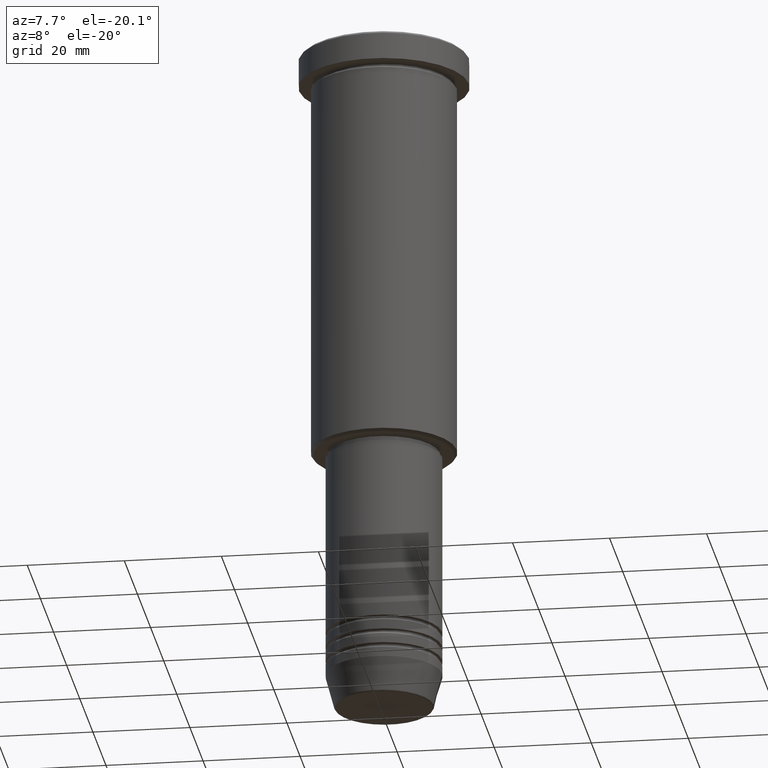
[diagram: clean part render]
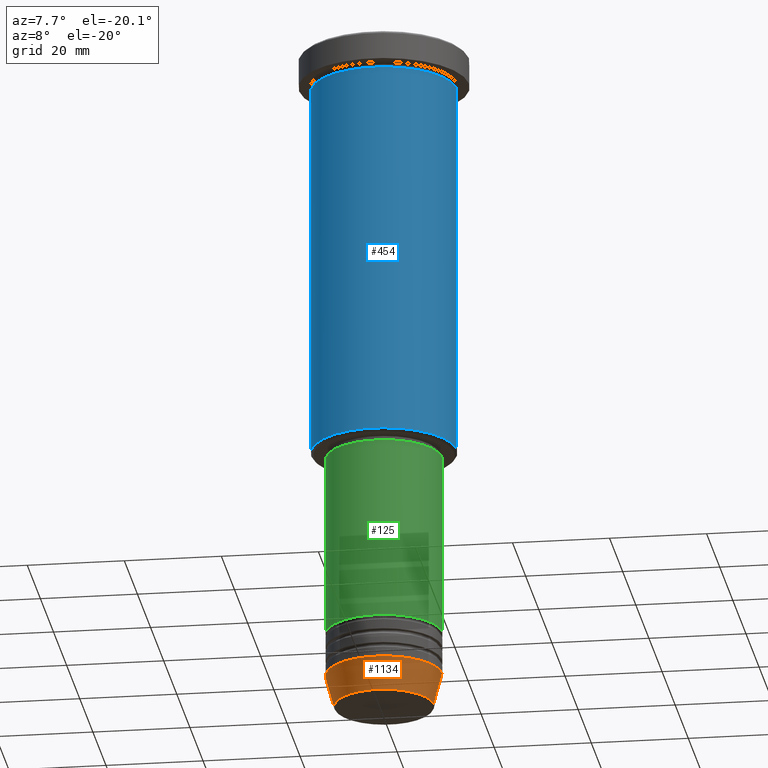
[diagram: same view with three faces highlighted in distinct colors, each labeled with its STEP entity id]
A machine part, auxiliary view with three faces highlighted in distinct colors.
Their STEP definitions:

[orange] entity #1134 — the highlighted conical surface has half-angle 15 deg.
#48 = CARTESIAN_POINT ( 'NONE',  ( 0.000000000000000000, 0.000000000000000000, -140.6294095225512706 ) ) ;
#65 = CARTESIAN_POINT ( 'NONE',  ( 0.000000000000000000, 0.000000000000000000, -134.0000000000000000 ) ) ;
#121 = CARTESIAN_POINT ( 'NONE',  ( 12.00000000000000000, 0.000000000000000000, -134.0000000000000000 ) ) ;
#204 = VECTOR ( 'NONE', #697, 1000.000000000000000 ) ;
#217 = ORIENTED_EDGE ( 'NONE', *, *, #599, .F. ) ;
#254 = EDGE_LOOP ( 'NONE', ( #533, #869, #663, #217 ) ) ;
#291 = CARTESIAN_POINT ( 'NONE',  ( 10.22365507213719127, 0.000000000000000000, -140.6294095225512706 ) ) ;
#330 = CARTESIAN_POINT ( 'NONE',  ( -12.00000000000000000, 1.469576158976823947E-15, -134.0000000000000000 ) ) ;
#408 = DIRECTION ( 'NONE',  ( 1.000000000000000000, 0.000000000000000000, 0.000000000000000000 ) ) ;
#432 = CIRCLE ( 'NONE', #893, 10.22365507213719127 ) ;
#456 = CARTESIAN_POINT ( 'NONE',  ( -10.22365507213719127, 1.360806402472382744E-15, -140.6294095225512706 ) ) ;
#463 = VECTOR ( 'NONE', #496, 1000.000000000000000 ) ;
#478 = VERTEX_POINT ( 'NONE', #456 ) ;
#496 = DIRECTION ( 'NONE',  ( -0.2588190451025213501, 3.169619151431772337E-17, 0.9659258262890680902 ) ) ;
#523 = VERTEX_POINT ( 'NONE', #291 ) ;
#533 = ORIENTED_EDGE ( 'NONE', *, *, #784, .F. ) ;
#534 = FACE_OUTER_BOUND ( 'NONE', #254, .T. ) ;
#581 = LINE ( 'NONE', #960, #204 ) ;
#599 = EDGE_CURVE ( 'NONE', #736, #902, #1180, .T. ) ;
#608 = AXIS2_PLACEMENT_3D ( 'NONE', #65, #1176, #1087 ) ;
#663 = ORIENTED_EDGE ( 'NONE', *, *, #800, .T. ) ;
#684 = CARTESIAN_POINT ( 'NONE',  ( 0.000000000000000000, 0.000000000000000000, -134.0000000000000000 ) ) ;
#697 = DIRECTION ( 'NONE',  ( 0.2588190451025213501, 0.000000000000000000, 0.9659258262890680902 ) ) ;
#736 = VERTEX_POINT ( 'NONE', #330 ) ;
#749 = DIRECTION ( 'NONE',  ( -0.000000000000000000, -0.000000000000000000, 1.000000000000000000 ) ) ;
#784 = EDGE_CURVE ( 'NONE', #478, #736, #881, .T. ) ;
#800 = EDGE_CURVE ( 'NONE', #523, #902, #581, .T. ) ;
#809 = EDGE_CURVE ( 'NONE', #478, #523, #432, .T. ) ;
#862 = DIRECTION ( 'NONE',  ( -0.000000000000000000, -0.000000000000000000, 1.000000000000000000 ) ) ;
#869 = ORIENTED_EDGE ( 'NONE', *, *, #809, .T. ) ;
#877 = CONICAL_SURFACE ( 'NONE', #608, 12.00000000000000000, 0.2617993877991500740 ) ;
#881 = LINE ( 'NONE', #1038, #463 ) ;
#893 = AXIS2_PLACEMENT_3D ( 'NONE', #48, #862, #408 ) ;
#902 = VERTEX_POINT ( 'NONE', #121 ) ;
#960 = CARTESIAN_POINT ( 'NONE',  ( 12.00000000000000000, 0.000000000000000000, -134.0000000000000000 ) ) ;
#966 = AXIS2_PLACEMENT_3D ( 'NONE', #684, #749, #1052 ) ;
#1038 = CARTESIAN_POINT ( 'NONE',  ( -12.00000000000000000, 1.469576158976823947E-15, -134.0000000000000000 ) ) ;
#1052 = DIRECTION ( 'NONE',  ( 1.000000000000000000, 0.000000000000000000, 0.000000000000000000 ) ) ;
#1087 = DIRECTION ( 'NONE',  ( 1.000000000000000000, 0.000000000000000000, 0.000000000000000000 ) ) ;
#1134 = ADVANCED_FACE ( 'NONE', ( #534 ), #877, .T. ) ;
#1176 = DIRECTION ( 'NONE',  ( -0.000000000000000000, -0.000000000000000000, 1.000000000000000000 ) ) ;
#1180 = CIRCLE ( 'NONE', #966, 12.00000000000000000 ) ;

[blue] entity #454 — the highlighted cylindrical surface (partial cylindrical patch) has radius 15 mm, axis along (-0, -0, 1).
#4 = EDGE_LOOP ( 'NONE', ( #747, #151, #689, #631 ) ) ;
#14 = VECTOR ( 'NONE', #393, 1000.000000000000000 ) ;
#51 = AXIS2_PLACEMENT_3D ( 'NONE', #708, #262, #253 ) ;
#93 = CARTESIAN_POINT ( 'NONE',  ( 0.000000000000000000, 0.000000000000000000, 0.000000000000000000 ) ) ;
#143 = CARTESIAN_POINT ( 'NONE',  ( -15.00000000000000000, 1.836970198721029589E-15, 0.000000000000000000 ) ) ;
#145 = CIRCLE ( 'NONE', #644, 15.00000000000000000 ) ;
#149 = DIRECTION ( 'NONE',  ( -1.000000000000000000, 0.000000000000000000, 0.000000000000000000 ) ) ;
#151 = ORIENTED_EDGE ( 'NONE', *, *, #1007, .T. ) ;
#186 = CYLINDRICAL_SURFACE ( 'NONE', #1161, 15.00000000000000000 ) ;
#253 = DIRECTION ( 'NONE',  ( 1.000000000000000000, 0.000000000000000000, 0.000000000000000000 ) ) ;
#262 = DIRECTION ( 'NONE',  ( -0.000000000000000000, -0.000000000000000000, 1.000000000000000000 ) ) ;
#375 = EDGE_CURVE ( 'NONE', #633, #539, #835, .T. ) ;
#380 = DIRECTION ( 'NONE',  ( -0.000000000000000000, -0.000000000000000000, 1.000000000000000000 ) ) ;
#392 = VECTOR ( 'NONE', #585, 1000.000000000000000 ) ;
#393 = DIRECTION ( 'NONE',  ( -0.000000000000000000, -0.000000000000000000, 1.000000000000000000 ) ) ;
#454 = ADVANCED_FACE ( 'NONE', ( #884 ), #186, .T. ) ;
#458 = VERTEX_POINT ( 'NONE', #724 ) ;
#461 = DIRECTION ( 'NONE',  ( 1.000000000000000000, 0.000000000000000000, 0.000000000000000000 ) ) ;
#473 = CARTESIAN_POINT ( 'NONE',  ( 15.00000000000000000, 0.000000000000000000, -6.999999999999995559 ) ) ;
#539 = VERTEX_POINT ( 'NONE', #473 ) ;
#585 = DIRECTION ( 'NONE',  ( -0.000000000000000000, -0.000000000000000000, 1.000000000000000000 ) ) ;
#620 = VERTEX_POINT ( 'NONE', #939 ) ;
#631 = ORIENTED_EDGE ( 'NONE', *, *, #375, .F. ) ;
#633 = VERTEX_POINT ( 'NONE', #1058 ) ;
#637 = EDGE_CURVE ( 'NONE', #458, #539, #782, .T. ) ;
#644 = AXIS2_PLACEMENT_3D ( 'NONE', #771, #1063, #149 ) ;
#651 = EDGE_CURVE ( 'NONE', #620, #633, #690, .T. ) ;
#689 = ORIENTED_EDGE ( 'NONE', *, *, #637, .T. ) ;
#690 = LINE ( 'NONE', #143, #392 ) ;
#708 = CARTESIAN_POINT ( 'NONE',  ( 0.000000000000000000, 0.000000000000000000, -6.999999999999995559 ) ) ;
#724 = CARTESIAN_POINT ( 'NONE',  ( 15.00000000000000000, 0.000000000000000000, -85.50000000000004263 ) ) ;
#747 = ORIENTED_EDGE ( 'NONE', *, *, #651, .F. ) ;
#771 = CARTESIAN_POINT ( 'NONE',  ( 0.000000000000000000, 0.000000000000000000, -85.50000000000004263 ) ) ;
#782 = LINE ( 'NONE', #962, #14 ) ;
#835 = CIRCLE ( 'NONE', #51, 15.00000000000000000 ) ;
#884 = FACE_OUTER_BOUND ( 'NONE', #4, .T. ) ;
#939 = CARTESIAN_POINT ( 'NONE',  ( -15.00000000000000000, 1.836970198721029589E-15, -85.50000000000004263 ) ) ;
#962 = CARTESIAN_POINT ( 'NONE',  ( 15.00000000000000000, 0.000000000000000000, 0.000000000000000000 ) ) ;
#1007 = EDGE_CURVE ( 'NONE', #620, #458, #145, .T. ) ;
#1058 = CARTESIAN_POINT ( 'NONE',  ( -15.00000000000000000, 1.836970198721029589E-15, -6.999999999999995559 ) ) ;
#1063 = DIRECTION ( 'NONE',  ( -0.000000000000000000, -0.000000000000000000, 1.000000000000000000 ) ) ;
#1161 = AXIS2_PLACEMENT_3D ( 'NONE', #93, #380, #461 ) ;

[green] entity #125 — the highlighted cylindrical surface (partial cylindrical patch) has radius 12 mm, axis along (-0, -0, 1).
#34 = EDGE_CURVE ( 'NONE', #532, #766, #482, .T. ) ;
#66 = AXIS2_PLACEMENT_3D ( 'NONE', #499, #947, #790 ) ;
#69 = VECTOR ( 'NONE', #1105, 1000.000000000000000 ) ;
#113 = ORIENTED_EDGE ( 'NONE', *, *, #34, .T. ) ;
#125 = ADVANCED_FACE ( 'NONE', ( #1132 ), #331, .T. ) ;
#268 = VERTEX_POINT ( 'NONE', #964 ) ;
#273 = CARTESIAN_POINT ( 'NONE',  ( -12.00000000000000000, 1.469576158976823947E-15, 0.000000000000000000 ) ) ;
#322 = DIRECTION ( 'NONE',  ( 1.000000000000000000, 0.000000000000000000, 0.000000000000000000 ) ) ;
#331 = CYLINDRICAL_SURFACE ( 'NONE', #66, 12.00000000000000000 ) ;
#370 = DIRECTION ( 'NONE',  ( -0.000000000000000000, -0.000000000000000000, 1.000000000000000000 ) ) ;
#390 = AXIS2_PLACEMENT_3D ( 'NONE', #551, #741, #648 ) ;
#397 = CARTESIAN_POINT ( 'NONE',  ( 12.00000000000000000, 0.000000000000000000, -124.9999999999999716 ) ) ;
#482 = CIRCLE ( 'NONE', #390, 12.00000000000000000 ) ;
#499 = CARTESIAN_POINT ( 'NONE',  ( 0.000000000000000000, 0.000000000000000000, 0.000000000000000000 ) ) ;
#505 = VECTOR ( 'NONE', #370, 1000.000000000000000 ) ;
#532 = VERTEX_POINT ( 'NONE', #650 ) ;
#535 = EDGE_CURVE ( 'NONE', #532, #268, #557, .T. ) ;
#551 = CARTESIAN_POINT ( 'NONE',  ( 0.000000000000000000, 0.000000000000000000, -124.9999999999999716 ) ) ;
#553 = EDGE_CURVE ( 'NONE', #766, #588, #734, .T. ) ;
#557 = LINE ( 'NONE', #273, #505 ) ;
#576 = CARTESIAN_POINT ( 'NONE',  ( 0.000000000000000000, 0.000000000000000000, -87.00000000000000000 ) ) ;
#588 = VERTEX_POINT ( 'NONE', #1033 ) ;
#619 = EDGE_CURVE ( 'NONE', #268, #588, #623, .T. ) ;
#623 = CIRCLE ( 'NONE', #643, 12.00000000000000000 ) ;
#643 = AXIS2_PLACEMENT_3D ( 'NONE', #576, #1044, #322 ) ;
#648 = DIRECTION ( 'NONE',  ( 1.000000000000000000, 0.000000000000000000, 0.000000000000000000 ) ) ;
#650 = CARTESIAN_POINT ( 'NONE',  ( -12.00000000000000000, 1.469576158976823947E-15, -124.9999999999999716 ) ) ;
#734 = LINE ( 'NONE', #1113, #69 ) ;
#741 = DIRECTION ( 'NONE',  ( -0.000000000000000000, -0.000000000000000000, 1.000000000000000000 ) ) ;
#766 = VERTEX_POINT ( 'NONE', #397 ) ;
#790 = DIRECTION ( 'NONE',  ( 1.000000000000000000, 0.000000000000000000, 0.000000000000000000 ) ) ;
#795 = EDGE_LOOP ( 'NONE', ( #841, #113, #901, #885 ) ) ;
#841 = ORIENTED_EDGE ( 'NONE', *, *, #535, .F. ) ;
#885 = ORIENTED_EDGE ( 'NONE', *, *, #619, .F. ) ;
#901 = ORIENTED_EDGE ( 'NONE', *, *, #553, .T. ) ;
#947 = DIRECTION ( 'NONE',  ( -0.000000000000000000, -0.000000000000000000, 1.000000000000000000 ) ) ;
#964 = CARTESIAN_POINT ( 'NONE',  ( -12.00000000000000000, 1.469576158976823947E-15, -87.00000000000000000 ) ) ;
#1033 = CARTESIAN_POINT ( 'NONE',  ( 12.00000000000000000, 0.000000000000000000, -87.00000000000000000 ) ) ;
#1044 = DIRECTION ( 'NONE',  ( -0.000000000000000000, -0.000000000000000000, 1.000000000000000000 ) ) ;
#1105 = DIRECTION ( 'NONE',  ( -0.000000000000000000, -0.000000000000000000, 1.000000000000000000 ) ) ;
#1113 = CARTESIAN_POINT ( 'NONE',  ( 12.00000000000000000, 0.000000000000000000, 0.000000000000000000 ) ) ;
#1132 = FACE_OUTER_BOUND ( 'NONE', #795, .T. ) ;